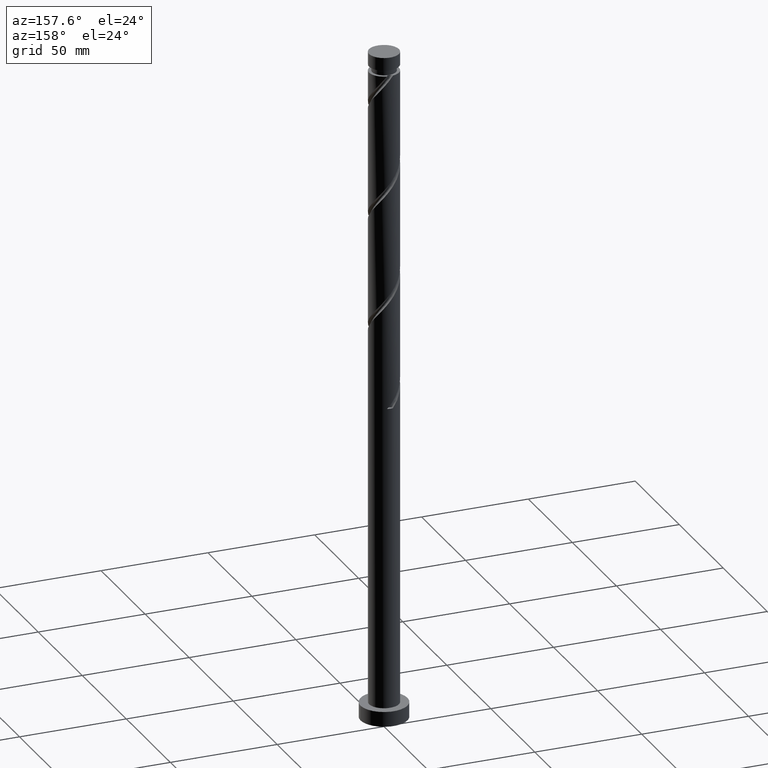
[diagram: clean part render]
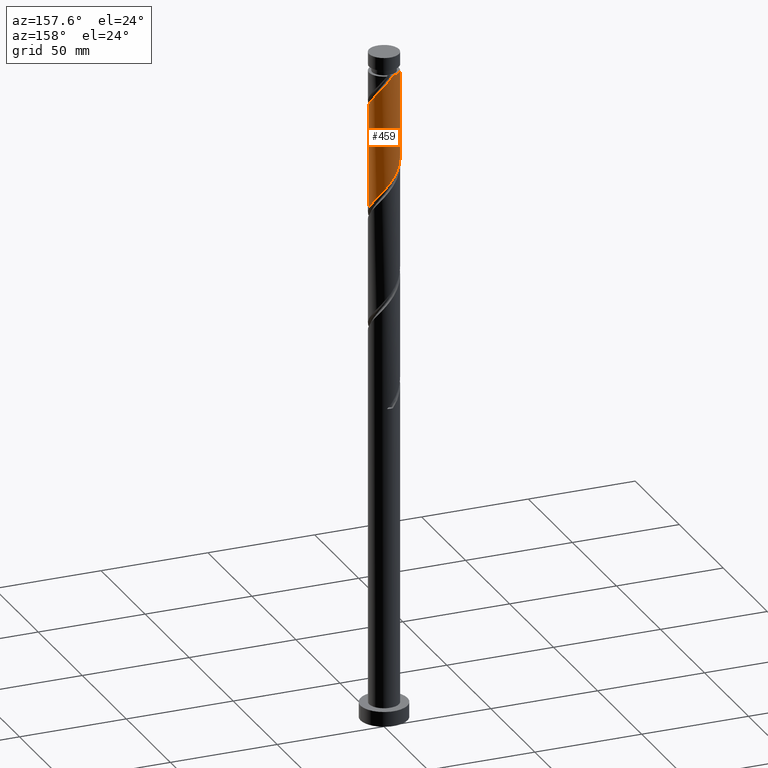
[diagram: same view with one face highlighted and labeled with its STEP entity id]
A machine part, auxiliary view. The second image highlights one B-rep face of the part: STEP entity #459.
In plain terms, the highlighted cylindrical surface (edge-blend (fillet) strip) has radius 7 mm, axis along (-0, -0, -1).
Its self-contained STEP definition (entity closure, byte-faithful):
#9 = AXIS2_PLACEMENT_3D ( 'NONE', #1039, #886, #1620 ) ;
#58 = CARTESIAN_POINT ( 'NONE',  ( 7.000000000000011546, -8.358433172054687072E-16, 291.3873779836515610 ) ) ;
#60 = CARTESIAN_POINT ( 'NONE',  ( -6.378037730275639916, 2.884551041528022441, 264.9368950615576068 ) ) ;
#70 = CARTESIAN_POINT ( 'NONE',  ( -2.485898938349330844, 6.591082676329789614, 258.3743950615576637 ) ) ;
#111 =( BOUNDED_CURVE ( )  B_SPLINE_CURVE ( 2, ( #58, #1129, #1858, #946, #1260, #1715, #1398, #804, #517, #1705, #539, #793, #343, #1108, #218, #1695, #1847 ),
 .UNSPECIFIED., .F., .T. ) 
 B_SPLINE_CURVE_WITH_KNOTS ( ( 3, 2, 2, 2, 2, 2, 2, 2, 3 ),
 ( 0.6795303401299219725, 0.6875000000000000000, 0.6964285714285713969, 0.7053571428571427937, 0.7142857142857143016, 0.7232142857142856984, 0.7321428571428572063, 0.7410714285714286031, 0.7500000000000000000 ),
 .UNSPECIFIED. ) 
 CURVE ( )  GEOMETRIC_REPRESENTATION_ITEM ( )  RATIONAL_B_SPLINE_CURVE ( ( 0.9079949616361995268, 0.9039886423360624645, 0.9090909090909291557, 0.9033747362666042502, 0.9090909090909291557, 0.9033747362666042502, 0.9090909090909291557, 0.9033747362666042502, 0.9090909090909291557, 0.9033747362666042502, 0.9090909090909291557, 0.9033747362666042502, 0.9090909090909291557, 0.9033747362666042502, 0.9090909090909291557, 0.9033747362666042502, 0.9090909090909291557 ) ) 
 REPRESENTATION_ITEM ( '' )  );
#188 = CARTESIAN_POINT ( 'NONE',  ( 6.978995026134492186, 0.9569183889397340215, 243.3743950615576068 ) ) ;
#218 = CARTESIAN_POINT ( 'NONE',  ( 0.1684361723526159593, 6.997973224858991870, 304.3118950615576637 ) ) ;
#219 = CARTESIAN_POINT ( 'NONE',  ( -4.494853641711733516, 5.366217544937103234, 261.1868950615576637 ) ) ;
#228 = CARTESIAN_POINT ( 'NONE',  ( -0.9569183889397352427, 6.978995026134492186, 256.4993950615576068 ) ) ;
#319 = VERTEX_POINT ( 'NONE', #938 ) ;
#336 = CARTESIAN_POINT ( 'NONE',  ( 5.872665919169487658, 3.890226134780112144, 247.1243950615576637 ) ) ;
#339 = VERTEX_POINT ( 'NONE', #1092 ) ;
#343 = CARTESIAN_POINT ( 'NONE',  ( 1.721408663644537596, 6.785038851232150670, 302.4368950615576637 ) ) ;
#355 = CARTESIAN_POINT ( 'NONE',  ( 0.6200460442345097078, 7.016951423583473790, 254.6243950615576637 ) ) ;
#374 = CARTESIAN_POINT ( 'NONE',  ( -3.890226134780114808, 5.872665919169487658, 260.2493950615576637 ) ) ;
#396 = ORIENTED_EDGE ( 'NONE', *, *, #1436, .F. ) ;
#459 = ADVANCED_FACE ( 'NONE', ( #609 ), #795, .T. ) ;
#479 = CARTESIAN_POINT ( 'NONE',  ( 2.165918779664035121, 6.703048576416527737, 252.7493950615576352 ) ) ;
#492 = CARTESIAN_POINT ( 'NONE',  ( 4.231476237048367395, 5.576254016389050605, 249.9368950615576637 ) ) ;
#510 = CARTESIAN_POINT ( 'NONE',  ( 6.785038851232142676, 1.721408663644531822, 244.3118950615576352 ) ) ;
#517 = CARTESIAN_POINT ( 'NONE',  ( 4.494853641711742398, 5.366217544937109452, 298.6868950615576637 ) ) ;
#539 = CARTESIAN_POINT ( 'NONE',  ( 3.188062536564728600, 6.231874297749647518, 300.5618950615577205 ) ) ;
#581 = CARTESIAN_POINT ( 'NONE',  ( 7.000000000000002665, -3.552334098123265129E-15, 242.2364121394637095 ) ) ;
#609 = FACE_OUTER_BOUND ( 'NONE', #1753, .T. ) ;
#638 = CARTESIAN_POINT ( 'NONE',  ( 7.000000000000002665, -3.552334098123264735E-15, 242.2364121394637095 ) ) ;
#652 = CARTESIAN_POINT ( 'NONE',  ( -5.576254016389052381, 4.231476237048364730, 263.0618950615576637 ) ) ;
#654 = EDGE_CURVE ( 'NONE', #1853, #339, #1262, .T. ) ;
#665 = CARTESIAN_POINT ( 'NONE',  ( -1.721408663644533377, 6.785038851232141788, 257.4368950615576068 ) ) ;
#752 = DIRECTION ( 'NONE',  ( -1.000000000000000000, 0.000000000000000000, 0.000000000000000000 ) ) ;
#757 = VERTEX_POINT ( 'NONE', #1911 ) ;
#770 = ORIENTED_EDGE ( 'NONE', *, *, #1515, .T. ) ;
#786 = CARTESIAN_POINT ( 'NONE',  ( 6.997973224858983876, 0.1684361723526117405, 242.4368950615576637 ) ) ;
#793 = CARTESIAN_POINT ( 'NONE',  ( 2.485898938349337062, 6.591082676329799384, 301.4993950615576068 ) ) ;
#794 = CARTESIAN_POINT ( 'NONE',  ( 6.231874297749640412, 3.188062536564720606, 246.1868950615576921 ) ) ;
#795 = CYLINDRICAL_SURFACE ( 'NONE', #1605, 7.000000000000000888 ) ;
#804 = CARTESIAN_POINT ( 'NONE',  ( 5.099481148643362438, 4.859769170704725916, 297.7493950615577774 ) ) ;
#828 = CARTESIAN_POINT ( 'NONE',  ( -0.1684361723526128229, 6.997973224858983876, 255.5618950615576921 ) ) ;
#886 = DIRECTION ( 'NONE',  ( -0.000000000000000000, -0.000000000000000000, -1.000000000000000000 ) ) ;
#937 = CARTESIAN_POINT ( 'NONE',  ( 6.591082676329788725, 2.485898938349329068, 245.2493950615576352 ) ) ;
#938 = CARTESIAN_POINT ( 'NONE',  ( -1.392982411949267307, 6.859999999999977227, 306.1868950615577205 ) ) ;
#946 = CARTESIAN_POINT ( 'NONE',  ( 6.703048576416539284, 2.165918779664035121, 293.9993950615576637 ) ) ;
#948 = DIRECTION ( 'NONE',  ( -0.000000000000000000, -0.000000000000000000, -1.000000000000000000 ) ) ;
#969 = CARTESIAN_POINT ( 'NONE',  ( -7.000000000000002665, 1.835870143147737993E-15, 268.4864121394636527 ) ) ;
#986 = LINE ( 'NONE', #1687, #1016 ) ;
#1016 = VECTOR ( 'NONE', #1119, 1000.000000000000000 ) ;
#1039 = CARTESIAN_POINT ( 'NONE',  ( 0.000000000000000000, 0.000000000000000000, 306.1868950615576068 ) ) ;
#1073 = ORIENTED_EDGE ( 'NONE', *, *, #1724, .T. ) ;
#1091 = CARTESIAN_POINT ( 'NONE',  ( 4.859769170704723251, 5.099481148643350892, 248.9993950615576068 ) ) ;
#1092 = CARTESIAN_POINT ( 'NONE',  ( -7.000000000000002665, 1.835870143147737993E-15, 268.4864121394636527 ) ) ;
#1100 = CARTESIAN_POINT ( 'NONE',  ( -6.053026884134752095, 3.603183303392009762, 263.9993950615576068 ) ) ;
#1108 = CARTESIAN_POINT ( 'NONE',  ( 0.9569183889397394616, 6.978995026134502844, 303.3743950615576068 ) ) ;
#1119 = DIRECTION ( 'NONE',  ( -0.000000000000000000, -0.000000000000000000, -1.000000000000000000 ) ) ;
#1120 = CARTESIAN_POINT ( 'NONE',  ( -7.000000000000000888, 0.000000000000000000, 315.0000000000000000 ) ) ;
#1129 = CARTESIAN_POINT ( 'NONE',  ( 7.000000000000014211, 0.7035264706814406965, 292.2256490626151617 ) ) ;
#1130 = CARTESIAN_POINT ( 'NONE',  ( -6.703048576416528626, 2.165918779664034233, 265.8743950615576637 ) ) ;
#1253 = CARTESIAN_POINT ( 'NONE',  ( 2.884551041528023774, 6.378037730275638140, 251.8118950615576637 ) ) ;
#1260 = CARTESIAN_POINT ( 'NONE',  ( 6.378037730275649686, 2.884551041528023774, 294.9368950615576637 ) ) ;
#1261 = CARTESIAN_POINT ( 'NONE',  ( 7.000000000000002665, 0.08423028016472972057, 242.3367748276887710 ) ) ;
#1262 = LINE ( 'NONE', #1120, #1269 ) ;
#1269 = VECTOR ( 'NONE', #1706, 1000.000000000000000 ) ;
#1373 = CARTESIAN_POINT ( 'NONE',  ( 0.000000000000000000, 0.000000000000000000, 315.0000000000000000 ) ) ;
#1388 = CARTESIAN_POINT ( 'NONE',  ( 3.603183303392011094, 6.053026884134751207, 250.8743950615576637 ) ) ;
#1398 = CARTESIAN_POINT ( 'NONE',  ( 5.576254016389061263, 4.231476237048370059, 296.8118950615576637 ) ) ;
#1421 = CARTESIAN_POINT ( 'NONE',  ( -3.188062536564721494, 6.231874297749637748, 259.3118950615576068 ) ) ;
#1436 = EDGE_CURVE ( 'NONE', #339, #1862, #1701, .T. ) ;
#1455 = CIRCLE ( 'NONE', #9, 6.999999999999976907 ) ;
#1515 = EDGE_CURVE ( 'NONE', #1853, #319, #1455, .T. ) ;
#1563 = CARTESIAN_POINT ( 'NONE',  ( -6.860000000000001208, 1.392982411949271748, 266.8118950615577205 ) ) ;
#1573 = CARTESIAN_POINT ( 'NONE',  ( -5.099481148643351780, 4.859769170704723251, 262.1243950615576068 ) ) ;
#1605 = AXIS2_PLACEMENT_3D ( 'NONE', #1373, #948, #752 ) ;
#1620 = DIRECTION ( 'NONE',  ( -1.000000000000000000, 0.000000000000000000, 0.000000000000000000 ) ) ;
#1644 = ORIENTED_EDGE ( 'NONE', *, *, #654, .F. ) ;
#1678 = CARTESIAN_POINT ( 'NONE',  ( 5.366217544937103234, 4.494853641711733516, 248.0618950615576921 ) ) ;
#1687 = CARTESIAN_POINT ( 'NONE',  ( 7.000000000000000888, 8.572527594031474176E-16, 315.0000000000000000 ) ) ;
#1695 = CARTESIAN_POINT ( 'NONE',  ( -0.6200460442345080425, 7.016951423583484448, 305.2493950615577205 ) ) ;
#1696 = CARTESIAN_POINT ( 'NONE',  ( -6.999999999999999112, 0.7035264706814610136, 267.6481410605000519 ) ) ;
#1701 =( BOUNDED_CURVE ( )  B_SPLINE_CURVE ( 2, ( #969, #1696, #1563, #1130, #60, #1100, #652, #1573, #219, #374, #1421, #70, #665, #228, #828, #355, #1819, #479, #1253, #1388, #492, #1091, #1678, #336, #794, #937, #510, #188, #786, #1261, #638 ),
 .UNSPECIFIED., .F., .T. ) 
 B_SPLINE_CURVE_WITH_KNOTS ( ( 3, 2, 2, 2, 2, 2, 2, 2, 2, 2, 2, 2, 2, 2, 2, 3 ),
 ( 0.4295303401299221391, 0.4375000000000000000, 0.4464285714285714524, 0.4553571428571428492, 0.4642857142857143016, 0.4732142857142856984, 0.4821428571428571508, 0.4910714285714285476, 0.5000000000000000000, 0.5089285714285713969, 0.5178571428571429047, 0.5267857142857143016, 0.5357142857142856984, 0.5446428571428570953, 0.5535714285714286031, 0.5545303401299220836 ),
 .UNSPECIFIED. ) 
 CURVE ( )  GEOMETRIC_REPRESENTATION_ITEM ( )  RATIONAL_B_SPLINE_CURVE ( ( 0.9079949616361931986, 0.9039886423360565804, 0.9090909090909231605, 0.9033747362665982550, 0.9090909090909231605, 0.9033747362665982550, 0.9090909090909231605, 0.9033747362665982550, 0.9090909090909231605, 0.9033747362665982550, 0.9090909090909231605, 0.9033747362665982550, 0.9090909090909231605, 0.9033747362665982550, 0.9090909090909231605, 0.9033747362665982550, 0.9090909090909231605, 0.9033747362665982550, 0.9090909090909231605, 0.9033747362665982550, 0.9090909090909231605, 0.9033747362665982550, 0.9090909090909231605, 0.9033747362665982550, 0.9090909090909231605, 0.9033747362665982550, 0.9090909090909231605, 0.9033747362665982550, 0.9090909090909231605, 0.9084770030214649461, 0.9079949616361933096 ) ) 
 REPRESENTATION_ITEM ( '' )  );
#1705 = CARTESIAN_POINT ( 'NONE',  ( 3.890226134780122802, 5.872665919169492987, 299.6243950615576637 ) ) ;
#1706 = DIRECTION ( 'NONE',  ( -0.000000000000000000, -0.000000000000000000, -1.000000000000000000 ) ) ;
#1709 = ORIENTED_EDGE ( 'NONE', *, *, #1755, .F. ) ;
#1715 = CARTESIAN_POINT ( 'NONE',  ( 6.053026884134760088, 3.603183303392011982, 295.8743950615576637 ) ) ;
#1724 = EDGE_CURVE ( 'NONE', #757, #1862, #986, .T. ) ;
#1753 = EDGE_LOOP ( 'NONE', ( #1709, #1073, #396, #1644, #770 ) ) ;
#1755 = EDGE_CURVE ( 'NONE', #757, #319, #111, .T. ) ;
#1767 = CARTESIAN_POINT ( 'NONE',  ( -6.999999999999976907, 0.000000000000000000, 306.1868950615576068 ) ) ;
#1819 = CARTESIAN_POINT ( 'NONE',  ( 1.392982411949273081, 6.860000000000001208, 253.6868950615576068 ) ) ;
#1847 = CARTESIAN_POINT ( 'NONE',  ( -1.392982411949267307, 6.859999999999977227, 306.1868950615577774 ) ) ;
#1853 = VERTEX_POINT ( 'NONE', #1767 ) ;
#1858 = CARTESIAN_POINT ( 'NONE',  ( 6.860000000000010978, 1.392982411949271304, 293.0618950615577205 ) ) ;
#1862 = VERTEX_POINT ( 'NONE', #581 ) ;
#1911 = CARTESIAN_POINT ( 'NONE',  ( 7.000000000000011546, -8.358433172054687072E-16, 291.3873779836516178 ) ) ;